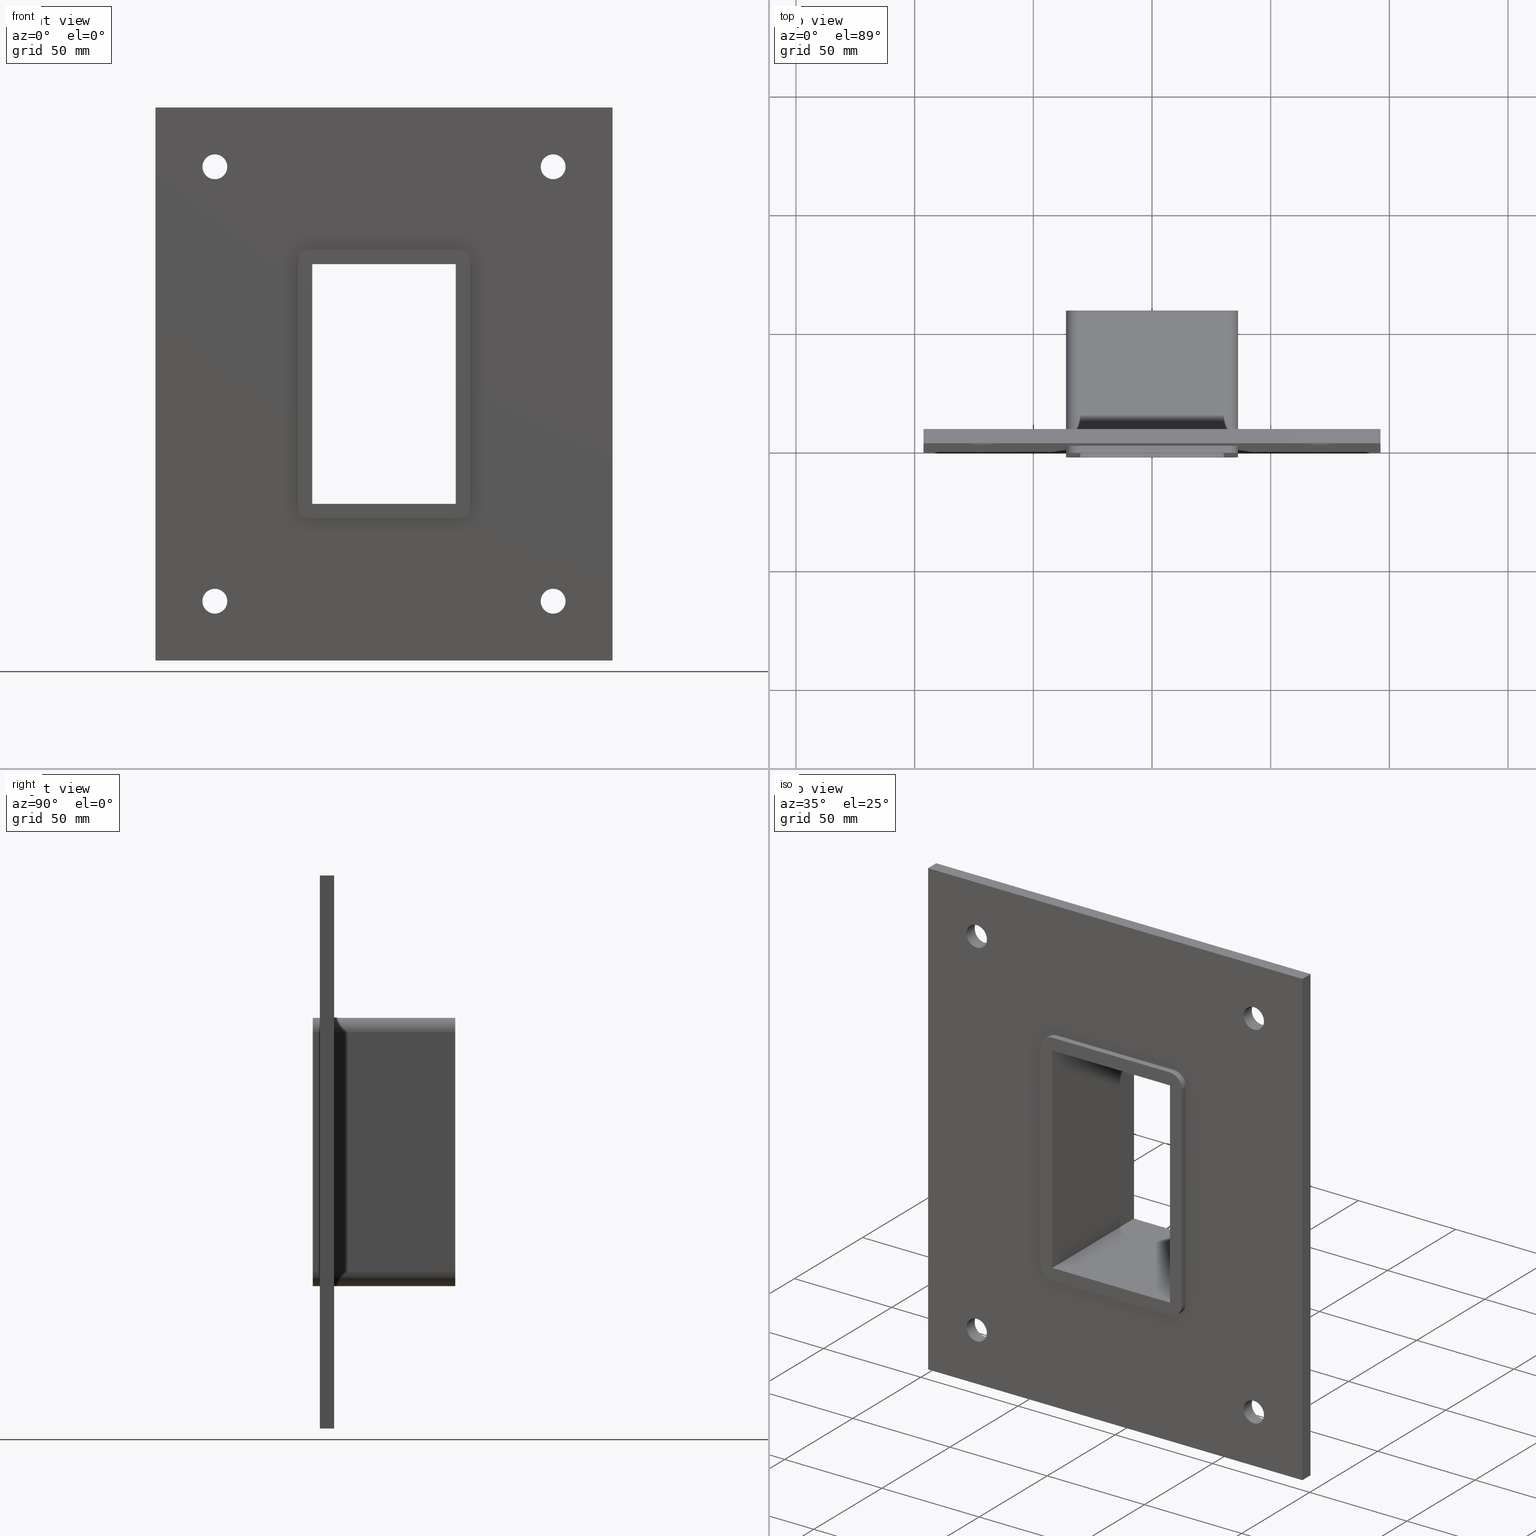
[diagram: canonical four-view strip — front | top / right | iso, engineering-drawing reading convention]
A machine part, canonical four-view strip (front | top / right | iso — engineering-drawing reading convention). The complete STEP part file that produces these views, byte-faithful:
ISO-10303-21;
HEADER;
/****************************************************************
 * Generated by software with PDElib inside                    *
 * PDElib Version v51a, created Wed 11/30/2011                  *
 * ITI Transcendata (http://www.transcendata.com/)              *
 ****************************************************************/
FILE_DESCRIPTION((''),'2;1');
FILE_NAME('L:\\roxtec-se\\Projects\\Ongoing_Projects\\12403 Transit Designer\\Product-data\\Product Data\\Reviwed & Approved\\Review\\GH\\STEP\\GH1X1.stp','2015-02-20T10:56:52',('se-emikul'),(''),'Autodesk Inventor 2013','Autodesk Inventor 2013','');
FILE_SCHEMA(('AUTOMOTIVE_DESIGN { 1 0 10303 214 1 1 1 1 }'));
ENDSEC;
DATA;
#5=APPLICATION_CONTEXT('automotive design');
#6=APPLICATION_PROTOCOL_DEFINITION('International Standard','automotive_design',2001,#5);
#7=PRODUCT_CONTEXT('',#5,'mechanical');
#8=PRODUCT('GH1X1','GH1X1',$,(#7));
#9=PRODUCT_RELATED_PRODUCT_CATEGORY('part',$,(#8));
#10=PRODUCT_DEFINITION_FORMATION('',$,#8);
#11=PRODUCT_DEFINITION_CONTEXT('part definition',#5,'design');
#12=PRODUCT_DEFINITION('',$,#10,#11);
#18=(NAMED_UNIT(*)PLANE_ANGLE_UNIT()SI_UNIT($,.RADIAN.));
#19=DIMENSIONAL_EXPONENTS(0.0,0.0,0.0,0.0,0.0,0.0,0.0);
#20=PLANE_ANGLE_MEASURE_WITH_UNIT(PLANE_ANGLE_MEASURE(0.0174532925),#18);
#24=(CONVERSION_BASED_UNIT('DEGREE',#20)NAMED_UNIT(#19)PLANE_ANGLE_UNIT());
#28=(NAMED_UNIT(*)SI_UNIT($,.STERADIAN.)SOLID_ANGLE_UNIT());
#32=(LENGTH_UNIT()NAMED_UNIT(*)SI_UNIT(.MILLI.,.METRE.));
#34=UNCERTAINTY_MEASURE_WITH_UNIT(LENGTH_MEASURE(0.01),#32,'DISTANCE_ACCURACY_VALUE','');
#36=(GEOMETRIC_REPRESENTATION_CONTEXT(3)GLOBAL_UNCERTAINTY_ASSIGNED_CONTEXT((#34))GLOBAL_UNIT_ASSIGNED_CONTEXT((#24,#28,#32))REPRESENTATION_CONTEXT('None','None'));
#37=AXIS2_PLACEMENT_3D('',#38,#39,#40);
#38=CARTESIAN_POINT('',(0.0,0.0,0.0));
#39=DIRECTION('',(0.0,0.0,1.0));
#40=DIRECTION('',(1.0,0.0,0.0));
#41=SHAPE_REPRESENTATION('',(#37),#36);
#42=PRODUCT_DEFINITION_SHAPE('','',#12);
#43=SHAPE_DEFINITION_REPRESENTATION(#42,#41);
#49=(NAMED_UNIT(*)PLANE_ANGLE_UNIT()SI_UNIT($,.RADIAN.));
#50=DIMENSIONAL_EXPONENTS(0.0,0.0,0.0,0.0,0.0,0.0,0.0);
#51=PLANE_ANGLE_MEASURE_WITH_UNIT(PLANE_ANGLE_MEASURE(0.0174532925),#49);
#55=(CONVERSION_BASED_UNIT('DEGREE',#51)NAMED_UNIT(#50)PLANE_ANGLE_UNIT());
#59=(NAMED_UNIT(*)SI_UNIT($,.STERADIAN.)SOLID_ANGLE_UNIT());
#63=(LENGTH_UNIT()NAMED_UNIT(*)SI_UNIT(.MILLI.,.METRE.));
#65=UNCERTAINTY_MEASURE_WITH_UNIT(LENGTH_MEASURE(0.000001),#63,'DISTANCE_ACCURACY_VALUE','');
#67=(GEOMETRIC_REPRESENTATION_CONTEXT(3)GLOBAL_UNCERTAINTY_ASSIGNED_CONTEXT((#65))GLOBAL_UNIT_ASSIGNED_CONTEXT((#55,#59,#63))REPRESENTATION_CONTEXT('','3D'));
#68=CARTESIAN_POINT('',(-71.250000000000128,308.13187112014236,-91.499999999999943));
#69=DIRECTION('',(0.0,-1.0,0.0));
#70=DIRECTION('',(1.0,0.0,0.0));
#71=AXIS2_PLACEMENT_3D('',#68,#69,#70);
#72=CYLINDRICAL_SURFACE('',#71,5.25);
#73=CARTESIAN_POINT('',(-76.500000000000128,6.000000000000014,-91.499999999999943));
#74=VERTEX_POINT('',#73);
#75=CARTESIAN_POINT('',(-71.250000000000128,6.000000000000014,-91.499999999999943));
#76=DIRECTION('',(0.0,-1.0,0.0));
#77=DIRECTION('',(1.0,0.0,0.0));
#78=AXIS2_PLACEMENT_3D('',#75,#76,#77);
#79=CIRCLE('',#78,5.25);
#80=EDGE_CURVE('',#74,#74,#79,.T.);
#81=ORIENTED_EDGE('',*,*,#80,.F.);
#82=EDGE_LOOP('',(#81));
#83=FACE_OUTER_BOUND('',#82,.T.);
#84=CARTESIAN_POINT('',(-66.000000000000114,0.0,-91.499999999999943));
#85=VERTEX_POINT('',#84);
#86=CARTESIAN_POINT('',(-71.250000000000128,0.0,-91.499999999999943));
#87=DIRECTION('',(0.0,1.0,0.0));
#88=DIRECTION('',(1.0,0.0,0.0));
#89=AXIS2_PLACEMENT_3D('',#86,#87,#88);
#90=CIRCLE('',#89,5.25);
#91=EDGE_CURVE('',#85,#85,#90,.T.);
#92=ORIENTED_EDGE('',*,*,#91,.F.);
#93=EDGE_LOOP('',(#92));
#94=FACE_BOUND('',#93,.T.);
#95=ADVANCED_FACE('',(#83,#94),#72,.F.);
#96=CARTESIAN_POINT('',(71.249999999999872,308.13187112014236,-91.5));
#97=DIRECTION('',(0.0,-1.0,0.0));
#98=DIRECTION('',(1.0,0.0,0.0));
#99=AXIS2_PLACEMENT_3D('',#96,#97,#98);
#100=CYLINDRICAL_SURFACE('',#99,5.25);
#101=CARTESIAN_POINT('',(65.999999999999872,6.000000000000014,-91.5));
#102=VERTEX_POINT('',#101);
#103=CARTESIAN_POINT('',(71.249999999999872,6.000000000000014,-91.5));
#104=DIRECTION('',(0.0,-1.0,0.0));
#105=DIRECTION('',(1.0,0.0,0.0));
#106=AXIS2_PLACEMENT_3D('',#103,#104,#105);
#107=CIRCLE('',#106,5.25);
#108=EDGE_CURVE('',#102,#102,#107,.T.);
#109=ORIENTED_EDGE('',*,*,#108,.F.);
#110=EDGE_LOOP('',(#109));
#111=FACE_OUTER_BOUND('',#110,.T.);
#112=CARTESIAN_POINT('',(76.499999999999886,0.0,-91.5));
#113=VERTEX_POINT('',#112);
#114=CARTESIAN_POINT('',(71.249999999999872,0.0,-91.5));
#115=DIRECTION('',(0.0,1.0,0.0));
#116=DIRECTION('',(1.0,0.0,0.0));
#117=AXIS2_PLACEMENT_3D('',#114,#115,#116);
#118=CIRCLE('',#117,5.25);
#119=EDGE_CURVE('',#113,#113,#118,.T.);
#120=ORIENTED_EDGE('',*,*,#119,.F.);
#121=EDGE_LOOP('',(#120));
#122=FACE_BOUND('',#121,.T.);
#123=ADVANCED_FACE('',(#111,#122),#100,.F.);
#124=CARTESIAN_POINT('',(-71.250000000000128,308.13187112014236,91.500000000000057));
#125=DIRECTION('',(0.0,-1.0,0.0));
#126=DIRECTION('',(1.0,0.0,0.0));
#127=AXIS2_PLACEMENT_3D('',#124,#125,#126);
#128=CYLINDRICAL_SURFACE('',#127,5.25);
#129=CARTESIAN_POINT('',(-76.500000000000128,6.000000000000014,91.500000000000057));
#130=VERTEX_POINT('',#129);
#131=CARTESIAN_POINT('',(-71.250000000000128,6.000000000000014,91.500000000000057));
#132=DIRECTION('',(0.0,-1.0,0.0));
#133=DIRECTION('',(1.0,0.0,0.0));
#134=AXIS2_PLACEMENT_3D('',#131,#132,#133);
#135=CIRCLE('',#134,5.25);
#136=EDGE_CURVE('',#130,#130,#135,.T.);
#137=ORIENTED_EDGE('',*,*,#136,.F.);
#138=EDGE_LOOP('',(#137));
#139=FACE_OUTER_BOUND('',#138,.T.);
#140=CARTESIAN_POINT('',(-66.000000000000114,0.0,91.500000000000057));
#141=VERTEX_POINT('',#140);
#142=CARTESIAN_POINT('',(-71.250000000000128,0.0,91.500000000000057));
#143=DIRECTION('',(0.0,1.0,0.0));
#144=DIRECTION('',(1.0,0.0,0.0));
#145=AXIS2_PLACEMENT_3D('',#142,#143,#144);
#146=CIRCLE('',#145,5.25);
#147=EDGE_CURVE('',#141,#141,#146,.T.);
#148=ORIENTED_EDGE('',*,*,#147,.F.);
#149=EDGE_LOOP('',(#148));
#150=FACE_BOUND('',#149,.T.);
#151=ADVANCED_FACE('',(#139,#150),#128,.F.);
#152=CARTESIAN_POINT('',(71.249999999999886,308.13187112014236,91.500000000000057));
#153=DIRECTION('',(0.0,-1.0,0.0));
#154=DIRECTION('',(1.0,0.0,0.0));
#155=AXIS2_PLACEMENT_3D('',#152,#153,#154);
#156=CYLINDRICAL_SURFACE('',#155,5.25);
#157=CARTESIAN_POINT('',(65.999999999999886,6.000000000000014,91.500000000000057));
#158=VERTEX_POINT('',#157);
#159=CARTESIAN_POINT('',(71.249999999999886,6.000000000000014,91.500000000000057));
#160=DIRECTION('',(0.0,-1.0,0.0));
#161=DIRECTION('',(1.0,0.0,0.0));
#162=AXIS2_PLACEMENT_3D('',#159,#160,#161);
#163=CIRCLE('',#162,5.25);
#164=EDGE_CURVE('',#158,#158,#163,.T.);
#165=ORIENTED_EDGE('',*,*,#164,.F.);
#166=EDGE_LOOP('',(#165));
#167=FACE_OUTER_BOUND('',#166,.T.);
#168=CARTESIAN_POINT('',(76.499999999999886,0.0,91.500000000000057));
#169=VERTEX_POINT('',#168);
#170=CARTESIAN_POINT('',(71.249999999999886,0.0,91.500000000000057));
#171=DIRECTION('',(0.0,1.0,0.0));
#172=DIRECTION('',(1.0,0.0,0.0));
#173=AXIS2_PLACEMENT_3D('',#170,#171,#172);
#174=CIRCLE('',#173,5.25);
#175=EDGE_CURVE('',#169,#169,#174,.T.);
#176=ORIENTED_EDGE('',*,*,#175,.F.);
#177=EDGE_LOOP('',(#176));
#178=FACE_BOUND('',#177,.T.);
#179=ADVANCED_FACE('',(#167,#178),#156,.F.);
#180=CARTESIAN_POINT('',(-1.502911E-014,6.000000000000001,0.0));
#181=DIRECTION('',(0.0,1.0,0.0));
#182=DIRECTION('',(0.0,0.0,1.0));
#183=AXIS2_PLACEMENT_3D('',#180,#181,#182);
#184=PLANE('',#183);
#185=CARTESIAN_POINT('',(-96.25,6.000000000000001,116.5));
#186=VERTEX_POINT('',#185);
#187=CARTESIAN_POINT('',(96.25,6.000000000000001,116.5));
#188=VERTEX_POINT('',#187);
#189=CARTESIAN_POINT('',(-96.25,6.000000000000001,116.5));
#190=DIRECTION('',(1.0,0.0,0.0));
#191=VECTOR('',#190,192.5);
#192=LINE('',#189,#191);
#193=EDGE_CURVE('',#186,#188,#192,.T.);
#194=ORIENTED_EDGE('',*,*,#193,.T.);
#195=CARTESIAN_POINT('',(96.25,6.000000000000001,-116.5));
#196=VERTEX_POINT('',#195);
#197=CARTESIAN_POINT('',(96.249999999999986,6.000000000000001,116.5));
#198=DIRECTION('',(0.0,0.0,-1.0));
#199=VECTOR('',#198,233.0);
#200=LINE('',#197,#199);
#201=EDGE_CURVE('',#188,#196,#200,.T.);
#202=ORIENTED_EDGE('',*,*,#201,.T.);
#203=CARTESIAN_POINT('',(-96.25,6.000000000000001,-116.5));
#204=VERTEX_POINT('',#203);
#205=CARTESIAN_POINT('',(96.249999999999986,6.000000000000001,-116.5));
#206=DIRECTION('',(-1.0,0.0,0.0));
#207=VECTOR('',#206,192.5);
#208=LINE('',#205,#207);
#209=EDGE_CURVE('',#196,#204,#208,.T.);
#210=ORIENTED_EDGE('',*,*,#209,.T.);
#211=CARTESIAN_POINT('',(-96.25,6.000000000000001,-116.5));
#212=DIRECTION('',(0.0,0.0,1.0));
#213=VECTOR('',#212,233.0);
#214=LINE('',#211,#213);
#215=EDGE_CURVE('',#204,#186,#214,.T.);
#216=ORIENTED_EDGE('',*,*,#215,.T.);
#217=EDGE_LOOP('',(#194,#202,#210,#216));
#218=FACE_OUTER_BOUND('',#217,.T.);
#219=ORIENTED_EDGE('',*,*,#80,.T.);
#220=EDGE_LOOP('',(#219));
#221=FACE_BOUND('',#220,.T.);
#222=ORIENTED_EDGE('',*,*,#108,.T.);
#223=EDGE_LOOP('',(#222));
#224=FACE_BOUND('',#223,.T.);
#225=ORIENTED_EDGE('',*,*,#136,.T.);
#226=EDGE_LOOP('',(#225));
#227=FACE_BOUND('',#226,.T.);
#228=ORIENTED_EDGE('',*,*,#164,.T.);
#229=EDGE_LOOP('',(#228));
#230=FACE_BOUND('',#229,.T.);
#231=CARTESIAN_POINT('',(-36.25,6.000000000000001,50.500000000000057));
#232=VERTEX_POINT('',#231);
#233=CARTESIAN_POINT('',(-30.250000000000004,6.000000000000001,56.500000000000057));
#234=VERTEX_POINT('',#233);
#235=CARTESIAN_POINT('',(-30.250000000000004,6.000000000000001,50.500000000000057));
#236=DIRECTION('',(0.0,1.0,0.0));
#237=DIRECTION('',(-0.707106781186547,0.0,0.707106781186547));
#238=AXIS2_PLACEMENT_3D('',#235,#236,#237);
#239=CIRCLE('',#238,6.0);
#240=EDGE_CURVE('',#232,#234,#239,.T.);
#241=ORIENTED_EDGE('',*,*,#240,.F.);
#242=CARTESIAN_POINT('',(-36.25,6.000000000000001,-50.500000000000057));
#243=VERTEX_POINT('',#242);
#244=CARTESIAN_POINT('',(-36.25,6.000000000000001,-50.500000000000057));
#245=DIRECTION('',(0.0,0.0,1.0));
#246=VECTOR('',#245,101.00000000000011);
#247=LINE('',#244,#246);
#248=EDGE_CURVE('',#243,#232,#247,.T.);
#249=ORIENTED_EDGE('',*,*,#248,.F.);
#250=CARTESIAN_POINT('',(-30.250000000000004,6.000000000000001,-56.500000000000057));
#251=VERTEX_POINT('',#250);
#252=CARTESIAN_POINT('',(-30.250000000000004,6.000000000000001,-50.500000000000057));
#253=DIRECTION('',(0.0,1.0,0.0));
#254=DIRECTION('',(-0.707106781186547,0.0,-0.707106781186547));
#255=AXIS2_PLACEMENT_3D('',#252,#253,#254);
#256=CIRCLE('',#255,6.0);
#257=EDGE_CURVE('',#251,#243,#256,.T.);
#258=ORIENTED_EDGE('',*,*,#257,.F.);
#259=CARTESIAN_POINT('',(30.250000000000004,6.000000000000001,-56.500000000000057));
#260=VERTEX_POINT('',#259);
#261=CARTESIAN_POINT('',(30.250000000000004,6.000000000000001,-56.500000000000057));
#262=DIRECTION('',(-1.0,0.0,0.0));
#263=VECTOR('',#262,60.5);
#264=LINE('',#261,#263);
#265=EDGE_CURVE('',#260,#251,#264,.T.);
#266=ORIENTED_EDGE('',*,*,#265,.F.);
#267=CARTESIAN_POINT('',(36.25,6.000000000000001,-50.500000000000057));
#268=VERTEX_POINT('',#267);
#269=CARTESIAN_POINT('',(30.250000000000004,6.000000000000001,-50.500000000000057));
#270=DIRECTION('',(0.0,1.0,0.0));
#271=DIRECTION('',(0.707106781186547,0.0,-0.707106781186547));
#272=AXIS2_PLACEMENT_3D('',#269,#270,#271);
#273=CIRCLE('',#272,6.0);
#274=EDGE_CURVE('',#268,#260,#273,.T.);
#275=ORIENTED_EDGE('',*,*,#274,.F.);
#276=CARTESIAN_POINT('',(36.25,6.000000000000001,50.500000000000057));
#277=VERTEX_POINT('',#276);
#278=CARTESIAN_POINT('',(36.25,6.000000000000001,50.500000000000057));
#279=DIRECTION('',(0.0,0.0,-1.0));
#280=VECTOR('',#279,101.00000000000011);
#281=LINE('',#278,#280);
#282=EDGE_CURVE('',#277,#268,#281,.T.);
#283=ORIENTED_EDGE('',*,*,#282,.F.);
#284=CARTESIAN_POINT('',(30.250000000000004,6.000000000000001,56.500000000000057));
#285=VERTEX_POINT('',#284);
#286=CARTESIAN_POINT('',(30.250000000000004,6.000000000000001,50.500000000000057));
#287=DIRECTION('',(0.0,1.0,0.0));
#288=DIRECTION('',(0.707106781186547,0.0,0.707106781186547));
#289=AXIS2_PLACEMENT_3D('',#286,#287,#288);
#290=CIRCLE('',#289,6.0);
#291=EDGE_CURVE('',#285,#277,#290,.T.);
#292=ORIENTED_EDGE('',*,*,#291,.F.);
#293=CARTESIAN_POINT('',(-30.250000000000004,6.000000000000001,56.500000000000057));
#294=DIRECTION('',(1.0,0.0,0.0));
#295=VECTOR('',#294,60.500000000000014);
#296=LINE('',#293,#295);
#297=EDGE_CURVE('',#234,#285,#296,.T.);
#298=ORIENTED_EDGE('',*,*,#297,.F.);
#299=EDGE_LOOP('',(#241,#249,#258,#266,#275,#283,#292,#298));
#300=FACE_BOUND('',#299,.T.);
#301=ADVANCED_FACE('',(#218,#221,#224,#227,#230,#300),#184,.T.);
#302=CARTESIAN_POINT('',(-1.502911E-014,0.0,0.0));
#303=DIRECTION('',(0.0,1.0,0.0));
#304=DIRECTION('',(0.0,0.0,1.0));
#305=AXIS2_PLACEMENT_3D('',#302,#303,#304);
#306=PLANE('',#305);
#307=CARTESIAN_POINT('',(-96.25,0.0,116.5));
#308=VERTEX_POINT('',#307);
#309=CARTESIAN_POINT('',(96.249999999999986,0.0,116.5));
#310=VERTEX_POINT('',#309);
#311=CARTESIAN_POINT('',(-96.25,0.0,116.5));
#312=DIRECTION('',(1.0,0.0,0.0));
#313=VECTOR('',#312,192.5);
#314=LINE('',#311,#313);
#315=EDGE_CURVE('',#308,#310,#314,.T.);
#316=ORIENTED_EDGE('',*,*,#315,.F.);
#317=CARTESIAN_POINT('',(-96.25,0.0,-116.5));
#318=VERTEX_POINT('',#317);
#319=CARTESIAN_POINT('',(-96.25,0.0,-116.5));
#320=DIRECTION('',(0.0,0.0,1.0));
#321=VECTOR('',#320,233.0);
#322=LINE('',#319,#321);
#323=EDGE_CURVE('',#318,#308,#322,.T.);
#324=ORIENTED_EDGE('',*,*,#323,.F.);
#325=CARTESIAN_POINT('',(96.249999999999986,0.0,-116.5));
#326=VERTEX_POINT('',#325);
#327=CARTESIAN_POINT('',(96.249999999999986,0.0,-116.5));
#328=DIRECTION('',(-1.0,0.0,0.0));
#329=VECTOR('',#328,192.5);
#330=LINE('',#327,#329);
#331=EDGE_CURVE('',#326,#318,#330,.T.);
#332=ORIENTED_EDGE('',*,*,#331,.F.);
#333=CARTESIAN_POINT('',(96.249999999999986,0.0,116.5));
#334=DIRECTION('',(0.0,0.0,-1.0));
#335=VECTOR('',#334,233.0);
#336=LINE('',#333,#335);
#337=EDGE_CURVE('',#310,#326,#336,.T.);
#338=ORIENTED_EDGE('',*,*,#337,.F.);
#339=EDGE_LOOP('',(#316,#324,#332,#338));
#340=FACE_OUTER_BOUND('',#339,.T.);
#341=ORIENTED_EDGE('',*,*,#91,.T.);
#342=EDGE_LOOP('',(#341));
#343=FACE_BOUND('',#342,.T.);
#344=ORIENTED_EDGE('',*,*,#119,.T.);
#345=EDGE_LOOP('',(#344));
#346=FACE_BOUND('',#345,.T.);
#347=ORIENTED_EDGE('',*,*,#147,.T.);
#348=EDGE_LOOP('',(#347));
#349=FACE_BOUND('',#348,.T.);
#350=ORIENTED_EDGE('',*,*,#175,.T.);
#351=EDGE_LOOP('',(#350));
#352=FACE_BOUND('',#351,.T.);
#353=CARTESIAN_POINT('',(-30.250000000000004,0.0,56.500000000000057));
#354=VERTEX_POINT('',#353);
#355=CARTESIAN_POINT('',(-36.25,0.0,50.500000000000057));
#356=VERTEX_POINT('',#355);
#357=CARTESIAN_POINT('',(-30.250000000000004,0.0,50.500000000000057));
#358=DIRECTION('',(0.0,-1.0,0.0));
#359=DIRECTION('',(-0.707106781186547,0.0,0.707106781186547));
#360=AXIS2_PLACEMENT_3D('',#357,#358,#359);
#361=CIRCLE('',#360,6.0);
#362=EDGE_CURVE('',#354,#356,#361,.T.);
#363=ORIENTED_EDGE('',*,*,#362,.F.);
#364=CARTESIAN_POINT('',(30.250000000000004,0.0,56.500000000000057));
#365=VERTEX_POINT('',#364);
#366=CARTESIAN_POINT('',(30.250000000000007,0.0,56.500000000000057));
#367=DIRECTION('',(-1.0,0.0,0.0));
#368=VECTOR('',#367,60.500000000000014);
#369=LINE('',#366,#368);
#370=EDGE_CURVE('',#365,#354,#369,.T.);
#371=ORIENTED_EDGE('',*,*,#370,.F.);
#372=CARTESIAN_POINT('',(36.25,0.0,50.500000000000057));
#373=VERTEX_POINT('',#372);
#374=CARTESIAN_POINT('',(30.250000000000004,0.0,50.500000000000057));
#375=DIRECTION('',(0.0,-1.0,0.0));
#376=DIRECTION('',(0.707106781186547,0.0,0.707106781186547));
#377=AXIS2_PLACEMENT_3D('',#374,#375,#376);
#378=CIRCLE('',#377,6.0);
#379=EDGE_CURVE('',#373,#365,#378,.T.);
#380=ORIENTED_EDGE('',*,*,#379,.F.);
#381=CARTESIAN_POINT('',(36.25,0.0,-50.500000000000057));
#382=VERTEX_POINT('',#381);
#383=CARTESIAN_POINT('',(36.25,0.0,-50.500000000000057));
#384=DIRECTION('',(0.0,0.0,1.0));
#385=VECTOR('',#384,101.00000000000011);
#386=LINE('',#383,#385);
#387=EDGE_CURVE('',#382,#373,#386,.T.);
#388=ORIENTED_EDGE('',*,*,#387,.F.);
#389=CARTESIAN_POINT('',(30.250000000000004,0.0,-56.500000000000057));
#390=VERTEX_POINT('',#389);
#391=CARTESIAN_POINT('',(30.250000000000004,0.0,-50.500000000000057));
#392=DIRECTION('',(0.0,-1.0,0.0));
#393=DIRECTION('',(0.707106781186547,0.0,-0.707106781186547));
#394=AXIS2_PLACEMENT_3D('',#391,#392,#393);
#395=CIRCLE('',#394,6.0);
#396=EDGE_CURVE('',#390,#382,#395,.T.);
#397=ORIENTED_EDGE('',*,*,#396,.F.);
#398=CARTESIAN_POINT('',(-30.250000000000004,0.0,-56.500000000000057));
#399=VERTEX_POINT('',#398);
#400=CARTESIAN_POINT('',(-30.25,0.0,-56.500000000000057));
#401=DIRECTION('',(1.0,0.0,0.0));
#402=VECTOR('',#401,60.5);
#403=LINE('',#400,#402);
#404=EDGE_CURVE('',#399,#390,#403,.T.);
#405=ORIENTED_EDGE('',*,*,#404,.F.);
#406=CARTESIAN_POINT('',(-36.25,0.0,-50.500000000000057));
#407=VERTEX_POINT('',#406);
#408=CARTESIAN_POINT('',(-30.250000000000004,0.0,-50.500000000000057));
#409=DIRECTION('',(0.0,-1.0,0.0));
#410=DIRECTION('',(-0.707106781186547,0.0,-0.707106781186547));
#411=AXIS2_PLACEMENT_3D('',#408,#409,#410);
#412=CIRCLE('',#411,6.0);
#413=EDGE_CURVE('',#407,#399,#412,.T.);
#414=ORIENTED_EDGE('',*,*,#413,.F.);
#415=CARTESIAN_POINT('',(-36.25,0.0,50.500000000000057));
#416=DIRECTION('',(0.0,0.0,-1.0));
#417=VECTOR('',#416,101.00000000000011);
#418=LINE('',#415,#417);
#419=EDGE_CURVE('',#356,#407,#418,.T.);
#420=ORIENTED_EDGE('',*,*,#419,.F.);
#421=EDGE_LOOP('',(#363,#371,#380,#388,#397,#405,#414,#420));
#422=FACE_BOUND('',#421,.T.);
#423=ADVANCED_FACE('',(#340,#343,#346,#349,#352,#422),#306,.F.);
#424=CARTESIAN_POINT('',(-96.25,0.0,-116.5));
#425=DIRECTION('',(-1.0,0.0,0.0));
#426=DIRECTION('',(0.0,0.0,1.0));
#427=AXIS2_PLACEMENT_3D('',#424,#425,#426);
#428=PLANE('',#427);
#429=ORIENTED_EDGE('',*,*,#323,.T.);
#430=CARTESIAN_POINT('',(-96.25,0.0,116.5));
#431=DIRECTION('',(0.0,1.0,0.0));
#432=VECTOR('',#431,6.000000000000001);
#433=LINE('',#430,#432);
#434=EDGE_CURVE('',#308,#186,#433,.T.);
#435=ORIENTED_EDGE('',*,*,#434,.T.);
#436=ORIENTED_EDGE('',*,*,#215,.F.);
#437=CARTESIAN_POINT('',(-96.25,0.0,-116.5));
#438=DIRECTION('',(0.0,1.0,0.0));
#439=VECTOR('',#438,6.000000000000001);
#440=LINE('',#437,#439);
#441=EDGE_CURVE('',#318,#204,#440,.T.);
#442=ORIENTED_EDGE('',*,*,#441,.F.);
#443=EDGE_LOOP('',(#429,#435,#436,#442));
#444=FACE_OUTER_BOUND('',#443,.T.);
#445=ADVANCED_FACE('',(#444),#428,.T.);
#446=CARTESIAN_POINT('',(96.249999999999986,0.0,-116.5));
#447=DIRECTION('',(0.0,0.0,-1.0));
#448=DIRECTION('',(-1.0,0.0,0.0));
#449=AXIS2_PLACEMENT_3D('',#446,#447,#448);
#450=PLANE('',#449);
#451=ORIENTED_EDGE('',*,*,#331,.T.);
#452=ORIENTED_EDGE('',*,*,#441,.T.);
#453=ORIENTED_EDGE('',*,*,#209,.F.);
#454=CARTESIAN_POINT('',(96.249999999999986,0.0,-116.5));
#455=DIRECTION('',(0.0,1.0,0.0));
#456=VECTOR('',#455,6.000000000000001);
#457=LINE('',#454,#456);
#458=EDGE_CURVE('',#326,#196,#457,.T.);
#459=ORIENTED_EDGE('',*,*,#458,.F.);
#460=EDGE_LOOP('',(#451,#452,#453,#459));
#461=FACE_OUTER_BOUND('',#460,.T.);
#462=ADVANCED_FACE('',(#461),#450,.T.);
#463=CARTESIAN_POINT('',(96.249999999999986,0.0,116.5));
#464=DIRECTION('',(1.0,0.0,0.0));
#465=DIRECTION('',(0.0,0.0,-1.0));
#466=AXIS2_PLACEMENT_3D('',#463,#464,#465);
#467=PLANE('',#466);
#468=ORIENTED_EDGE('',*,*,#337,.T.);
#469=ORIENTED_EDGE('',*,*,#458,.T.);
#470=ORIENTED_EDGE('',*,*,#201,.F.);
#471=CARTESIAN_POINT('',(96.249999999999986,0.0,116.5));
#472=DIRECTION('',(0.0,1.0,0.0));
#473=VECTOR('',#472,6.000000000000001);
#474=LINE('',#471,#473);
#475=EDGE_CURVE('',#310,#188,#474,.T.);
#476=ORIENTED_EDGE('',*,*,#475,.F.);
#477=EDGE_LOOP('',(#468,#469,#470,#476));
#478=FACE_OUTER_BOUND('',#477,.T.);
#479=ADVANCED_FACE('',(#478),#467,.T.);
#480=CARTESIAN_POINT('',(-96.25,0.0,116.5));
#481=DIRECTION('',(0.0,0.0,1.0));
#482=DIRECTION('',(1.0,0.0,0.0));
#483=AXIS2_PLACEMENT_3D('',#480,#481,#482);
#484=PLANE('',#483);
#485=ORIENTED_EDGE('',*,*,#315,.T.);
#486=ORIENTED_EDGE('',*,*,#475,.T.);
#487=ORIENTED_EDGE('',*,*,#193,.F.);
#488=ORIENTED_EDGE('',*,*,#434,.F.);
#489=EDGE_LOOP('',(#485,#486,#487,#488));
#490=FACE_OUTER_BOUND('',#489,.T.);
#491=ADVANCED_FACE('',(#490),#484,.T.);
#492=CARTESIAN_POINT('',(-30.249999999999986,0.0,-50.500000000000043));
#493=DIRECTION('',(-1.0,0.0,0.0));
#494=DIRECTION('',(0.0,0.0,1.0));
#495=AXIS2_PLACEMENT_3D('',#492,#493,#494);
#496=PLANE('',#495);
#497=CARTESIAN_POINT('',(-30.249999999999986,-3.0,-50.500000000000043));
#498=VERTEX_POINT('',#497);
#499=CARTESIAN_POINT('',(-30.249999999999986,57.0,-50.500000000000043));
#500=VERTEX_POINT('',#499);
#501=CARTESIAN_POINT('',(-30.249999999999986,-3.0,-50.500000000000043));
#502=DIRECTION('',(0.0,1.0,0.0));
#503=VECTOR('',#502,60.0);
#504=LINE('',#501,#503);
#505=EDGE_CURVE('',#498,#500,#504,.T.);
#506=ORIENTED_EDGE('',*,*,#505,.T.);
#507=CARTESIAN_POINT('',(-30.249999999999986,57.0,50.500000000000007));
#508=VERTEX_POINT('',#507);
#509=CARTESIAN_POINT('',(-30.249999999999986,57.0,50.500000000000007));
#510=DIRECTION('',(0.0,0.0,-1.0));
#511=VECTOR('',#510,101.00000000000006);
#512=LINE('',#509,#511);
#513=EDGE_CURVE('',#508,#500,#512,.T.);
#514=ORIENTED_EDGE('',*,*,#513,.F.);
#515=CARTESIAN_POINT('',(-30.249999999999986,-3.0,50.500000000000007));
#516=VERTEX_POINT('',#515);
#517=CARTESIAN_POINT('',(-30.249999999999986,-3.0,50.500000000000007));
#518=DIRECTION('',(0.0,1.0,0.0));
#519=VECTOR('',#518,60.0);
#520=LINE('',#517,#519);
#521=EDGE_CURVE('',#516,#508,#520,.T.);
#522=ORIENTED_EDGE('',*,*,#521,.F.);
#523=CARTESIAN_POINT('',(-30.249999999999986,-3.0,-50.500000000000043));
#524=DIRECTION('',(0.0,0.0,1.0));
#525=VECTOR('',#524,101.00000000000006);
#526=LINE('',#523,#525);
#527=EDGE_CURVE('',#498,#516,#526,.T.);
#528=ORIENTED_EDGE('',*,*,#527,.F.);
#529=EDGE_LOOP('',(#506,#514,#522,#528));
#530=FACE_OUTER_BOUND('',#529,.T.);
#531=ADVANCED_FACE('',(#530),#496,.F.);
#532=CARTESIAN_POINT('',(30.250000000000004,0.0,-50.500000000000057));
#533=DIRECTION('',(0.0,1.0,0.0));
#534=DIRECTION('',(0.707106781186547,0.0,-0.707106781186547));
#535=AXIS2_PLACEMENT_3D('',#532,#533,#534);
#536=CYLINDRICAL_SURFACE('',#535,6.000000000000001);
#537=ORIENTED_EDGE('',*,*,#396,.T.);
#538=CARTESIAN_POINT('',(36.25,-3.0,-50.500000000000057));
#539=VERTEX_POINT('',#538);
#540=CARTESIAN_POINT('',(36.25,0.0,-50.500000000000057));
#541=DIRECTION('',(0.0,-1.0,0.0));
#542=VECTOR('',#541,3.0);
#543=LINE('',#540,#542);
#544=EDGE_CURVE('',#382,#539,#543,.T.);
#545=ORIENTED_EDGE('',*,*,#544,.T.);
#546=CARTESIAN_POINT('',(30.250000000000004,-3.0,-56.500000000000057));
#547=VERTEX_POINT('',#546);
#548=CARTESIAN_POINT('',(30.250000000000004,-3.0,-50.500000000000057));
#549=DIRECTION('',(0.0,1.0,0.0));
#550=DIRECTION('',(0.707106781186547,0.0,-0.707106781186547));
#551=AXIS2_PLACEMENT_3D('',#548,#549,#550);
#552=CIRCLE('',#551,6.0);
#553=EDGE_CURVE('',#539,#547,#552,.T.);
#554=ORIENTED_EDGE('',*,*,#553,.T.);
#555=CARTESIAN_POINT('',(30.250000000000004,-3.0,-56.500000000000057));
#556=DIRECTION('',(0.0,1.0,0.0));
#557=VECTOR('',#556,3.0);
#558=LINE('',#555,#557);
#559=EDGE_CURVE('',#547,#390,#558,.T.);
#560=ORIENTED_EDGE('',*,*,#559,.T.);
#561=EDGE_LOOP('',(#537,#545,#554,#560));
#562=FACE_OUTER_BOUND('',#561,.T.);
#563=ADVANCED_FACE('',(#562),#536,.T.);
#564=CARTESIAN_POINT('',(30.250000000000004,0.0,-50.500000000000057));
#565=DIRECTION('',(0.0,1.0,0.0));
#566=DIRECTION('',(0.707106781186547,0.0,-0.707106781186547));
#567=AXIS2_PLACEMENT_3D('',#564,#565,#566);
#568=CYLINDRICAL_SURFACE('',#567,6.000000000000001);
#569=ORIENTED_EDGE('',*,*,#274,.T.);
#570=CARTESIAN_POINT('',(30.250000000000004,57.0,-56.500000000000057));
#571=VERTEX_POINT('',#570);
#572=CARTESIAN_POINT('',(30.250000000000004,6.000000000000001,-56.500000000000057));
#573=DIRECTION('',(0.0,1.0,0.0));
#574=VECTOR('',#573,51.0);
#575=LINE('',#572,#574);
#576=EDGE_CURVE('',#260,#571,#575,.T.);
#577=ORIENTED_EDGE('',*,*,#576,.T.);
#578=CARTESIAN_POINT('',(36.25,57.0,-50.500000000000057));
#579=VERTEX_POINT('',#578);
#580=CARTESIAN_POINT('',(30.250000000000004,57.0,-50.500000000000057));
#581=DIRECTION('',(0.0,-1.0,0.0));
#582=DIRECTION('',(0.707106781186547,0.0,-0.707106781186547));
#583=AXIS2_PLACEMENT_3D('',#580,#581,#582);
#584=CIRCLE('',#583,6.0);
#585=EDGE_CURVE('',#571,#579,#584,.T.);
#586=ORIENTED_EDGE('',*,*,#585,.T.);
#587=CARTESIAN_POINT('',(36.25,57.0,-50.500000000000057));
#588=DIRECTION('',(0.0,-1.0,0.0));
#589=VECTOR('',#588,51.0);
#590=LINE('',#587,#589);
#591=EDGE_CURVE('',#579,#268,#590,.T.);
#592=ORIENTED_EDGE('',*,*,#591,.T.);
#593=EDGE_LOOP('',(#569,#577,#586,#592));
#594=FACE_OUTER_BOUND('',#593,.T.);
#595=ADVANCED_FACE('',(#594),#568,.T.);
#596=CARTESIAN_POINT('',(36.25,0.0,-56.500000000000057));
#597=DIRECTION('',(0.0,0.0,-1.0));
#598=DIRECTION('',(-1.0,0.0,0.0));
#599=AXIS2_PLACEMENT_3D('',#596,#597,#598);
#600=PLANE('',#599);
#601=ORIENTED_EDGE('',*,*,#404,.T.);
#602=ORIENTED_EDGE('',*,*,#559,.F.);
#603=CARTESIAN_POINT('',(-30.250000000000004,-3.0,-56.500000000000057));
#604=VERTEX_POINT('',#603);
#605=CARTESIAN_POINT('',(-30.25,-3.0,-56.500000000000057));
#606=DIRECTION('',(1.0,0.0,0.0));
#607=VECTOR('',#606,60.5);
#608=LINE('',#605,#607);
#609=EDGE_CURVE('',#604,#547,#608,.T.);
#610=ORIENTED_EDGE('',*,*,#609,.F.);
#611=CARTESIAN_POINT('',(-30.250000000000004,0.0,-56.500000000000057));
#612=DIRECTION('',(0.0,-1.0,0.0));
#613=VECTOR('',#612,3.0);
#614=LINE('',#611,#613);
#615=EDGE_CURVE('',#399,#604,#614,.T.);
#616=ORIENTED_EDGE('',*,*,#615,.F.);
#617=EDGE_LOOP('',(#601,#602,#610,#616));
#618=FACE_OUTER_BOUND('',#617,.T.);
#619=ADVANCED_FACE('',(#618),#600,.T.);
#620=CARTESIAN_POINT('',(36.25,0.0,-56.500000000000057));
#621=DIRECTION('',(0.0,0.0,-1.0));
#622=DIRECTION('',(-1.0,0.0,0.0));
#623=AXIS2_PLACEMENT_3D('',#620,#621,#622);
#624=PLANE('',#623);
#625=ORIENTED_EDGE('',*,*,#265,.T.);
#626=CARTESIAN_POINT('',(-30.250000000000004,57.0,-56.500000000000057));
#627=VERTEX_POINT('',#626);
#628=CARTESIAN_POINT('',(-30.250000000000004,57.0,-56.500000000000057));
#629=DIRECTION('',(0.0,-1.0,0.0));
#630=VECTOR('',#629,51.0);
#631=LINE('',#628,#630);
#632=EDGE_CURVE('',#627,#251,#631,.T.);
#633=ORIENTED_EDGE('',*,*,#632,.F.);
#634=CARTESIAN_POINT('',(30.250000000000004,57.0,-56.500000000000057));
#635=DIRECTION('',(-1.0,0.0,0.0));
#636=VECTOR('',#635,60.5);
#637=LINE('',#634,#636);
#638=EDGE_CURVE('',#571,#627,#637,.T.);
#639=ORIENTED_EDGE('',*,*,#638,.F.);
#640=ORIENTED_EDGE('',*,*,#576,.F.);
#641=EDGE_LOOP('',(#625,#633,#639,#640));
#642=FACE_OUTER_BOUND('',#641,.T.);
#643=ADVANCED_FACE('',(#642),#624,.T.);
#644=CARTESIAN_POINT('',(36.25,0.0,56.500000000000021));
#645=DIRECTION('',(1.0,0.0,0.0));
#646=DIRECTION('',(0.0,0.0,-1.0));
#647=AXIS2_PLACEMENT_3D('',#644,#645,#646);
#648=PLANE('',#647);
#649=ORIENTED_EDGE('',*,*,#387,.T.);
#650=CARTESIAN_POINT('',(36.25,-3.0,50.500000000000057));
#651=VERTEX_POINT('',#650);
#652=CARTESIAN_POINT('',(36.25,-3.0,50.500000000000057));
#653=DIRECTION('',(0.0,1.0,0.0));
#654=VECTOR('',#653,3.0);
#655=LINE('',#652,#654);
#656=EDGE_CURVE('',#651,#373,#655,.T.);
#657=ORIENTED_EDGE('',*,*,#656,.F.);
#658=CARTESIAN_POINT('',(36.25,-3.0,-50.500000000000057));
#659=DIRECTION('',(0.0,0.0,1.0));
#660=VECTOR('',#659,101.00000000000011);
#661=LINE('',#658,#660);
#662=EDGE_CURVE('',#539,#651,#661,.T.);
#663=ORIENTED_EDGE('',*,*,#662,.F.);
#664=ORIENTED_EDGE('',*,*,#544,.F.);
#665=EDGE_LOOP('',(#649,#657,#663,#664));
#666=FACE_OUTER_BOUND('',#665,.T.);
#667=ADVANCED_FACE('',(#666),#648,.T.);
#668=CARTESIAN_POINT('',(-30.250000000000004,0.0,-50.500000000000057));
#669=DIRECTION('',(0.0,1.0,0.0));
#670=DIRECTION('',(-0.707106781186547,0.0,-0.707106781186547));
#671=AXIS2_PLACEMENT_3D('',#668,#669,#670);
#672=CYLINDRICAL_SURFACE('',#671,6.000000000000001);
#673=ORIENTED_EDGE('',*,*,#413,.T.);
#674=ORIENTED_EDGE('',*,*,#615,.T.);
#675=CARTESIAN_POINT('',(-36.25,-3.0,-50.500000000000057));
#676=VERTEX_POINT('',#675);
#677=CARTESIAN_POINT('',(-30.250000000000004,-3.0,-50.500000000000057));
#678=DIRECTION('',(0.0,1.0,0.0));
#679=DIRECTION('',(-0.707106781186547,0.0,-0.707106781186547));
#680=AXIS2_PLACEMENT_3D('',#677,#678,#679);
#681=CIRCLE('',#680,6.0);
#682=EDGE_CURVE('',#604,#676,#681,.T.);
#683=ORIENTED_EDGE('',*,*,#682,.T.);
#684=CARTESIAN_POINT('',(-36.25,-3.0,-50.500000000000057));
#685=DIRECTION('',(0.0,1.0,0.0));
#686=VECTOR('',#685,3.0);
#687=LINE('',#684,#686);
#688=EDGE_CURVE('',#676,#407,#687,.T.);
#689=ORIENTED_EDGE('',*,*,#688,.T.);
#690=EDGE_LOOP('',(#673,#674,#683,#689));
#691=FACE_OUTER_BOUND('',#690,.T.);
#692=ADVANCED_FACE('',(#691),#672,.T.);
#693=CARTESIAN_POINT('',(-30.250000000000004,0.0,-50.500000000000057));
#694=DIRECTION('',(0.0,1.0,0.0));
#695=DIRECTION('',(-0.707106781186547,0.0,-0.707106781186547));
#696=AXIS2_PLACEMENT_3D('',#693,#694,#695);
#697=CYLINDRICAL_SURFACE('',#696,6.000000000000001);
#698=ORIENTED_EDGE('',*,*,#257,.T.);
#699=CARTESIAN_POINT('',(-36.25,57.0,-50.500000000000057));
#700=VERTEX_POINT('',#699);
#701=CARTESIAN_POINT('',(-36.25,6.000000000000001,-50.500000000000057));
#702=DIRECTION('',(0.0,1.0,0.0));
#703=VECTOR('',#702,51.0);
#704=LINE('',#701,#703);
#705=EDGE_CURVE('',#243,#700,#704,.T.);
#706=ORIENTED_EDGE('',*,*,#705,.T.);
#707=CARTESIAN_POINT('',(-30.250000000000004,57.0,-50.500000000000057));
#708=DIRECTION('',(0.0,-1.0,0.0));
#709=DIRECTION('',(-0.707106781186547,0.0,-0.707106781186547));
#710=AXIS2_PLACEMENT_3D('',#707,#708,#709);
#711=CIRCLE('',#710,6.0);
#712=EDGE_CURVE('',#700,#627,#711,.T.);
#713=ORIENTED_EDGE('',*,*,#712,.T.);
#714=ORIENTED_EDGE('',*,*,#632,.T.);
#715=EDGE_LOOP('',(#698,#706,#713,#714));
#716=FACE_OUTER_BOUND('',#715,.T.);
#717=ADVANCED_FACE('',(#716),#697,.T.);
#718=CARTESIAN_POINT('',(30.250000000000004,0.0,50.500000000000057));
#719=DIRECTION('',(0.0,-1.0,0.0));
#720=DIRECTION('',(0.707106781186547,0.0,0.707106781186547));
#721=AXIS2_PLACEMENT_3D('',#718,#719,#720);
#722=CYLINDRICAL_SURFACE('',#721,6.000000000000001);
#723=ORIENTED_EDGE('',*,*,#379,.T.);
#724=CARTESIAN_POINT('',(30.250000000000004,-3.0,56.500000000000057));
#725=VERTEX_POINT('',#724);
#726=CARTESIAN_POINT('',(30.250000000000004,0.0,56.500000000000057));
#727=DIRECTION('',(0.0,-1.0,0.0));
#728=VECTOR('',#727,3.0);
#729=LINE('',#726,#728);
#730=EDGE_CURVE('',#365,#725,#729,.T.);
#731=ORIENTED_EDGE('',*,*,#730,.T.);
#732=CARTESIAN_POINT('',(30.250000000000004,-3.0,50.500000000000057));
#733=DIRECTION('',(0.0,1.0,0.0));
#734=DIRECTION('',(0.707106781186547,0.0,0.707106781186547));
#735=AXIS2_PLACEMENT_3D('',#732,#733,#734);
#736=CIRCLE('',#735,6.0);
#737=EDGE_CURVE('',#725,#651,#736,.T.);
#738=ORIENTED_EDGE('',*,*,#737,.T.);
#739=ORIENTED_EDGE('',*,*,#656,.T.);
#740=EDGE_LOOP('',(#723,#731,#738,#739));
#741=FACE_OUTER_BOUND('',#740,.T.);
#742=ADVANCED_FACE('',(#741),#722,.T.);
#743=CARTESIAN_POINT('',(-36.25,0.0,-56.500000000000021));
#744=DIRECTION('',(-1.0,0.0,0.0));
#745=DIRECTION('',(0.0,0.0,1.0));
#746=AXIS2_PLACEMENT_3D('',#743,#744,#745);
#747=PLANE('',#746);
#748=ORIENTED_EDGE('',*,*,#419,.T.);
#749=ORIENTED_EDGE('',*,*,#688,.F.);
#750=CARTESIAN_POINT('',(-36.25,-3.0,50.500000000000057));
#751=VERTEX_POINT('',#750);
#752=CARTESIAN_POINT('',(-36.25,-3.0,50.500000000000057));
#753=DIRECTION('',(0.0,0.0,-1.0));
#754=VECTOR('',#753,101.00000000000011);
#755=LINE('',#752,#754);
#756=EDGE_CURVE('',#751,#676,#755,.T.);
#757=ORIENTED_EDGE('',*,*,#756,.F.);
#758=CARTESIAN_POINT('',(-36.25,0.0,50.500000000000057));
#759=DIRECTION('',(0.0,-1.0,0.0));
#760=VECTOR('',#759,3.0);
#761=LINE('',#758,#760);
#762=EDGE_CURVE('',#356,#751,#761,.T.);
#763=ORIENTED_EDGE('',*,*,#762,.F.);
#764=EDGE_LOOP('',(#748,#749,#757,#763));
#765=FACE_OUTER_BOUND('',#764,.T.);
#766=ADVANCED_FACE('',(#765),#747,.T.);
#767=CARTESIAN_POINT('',(-36.25,0.0,-56.500000000000021));
#768=DIRECTION('',(-1.0,0.0,0.0));
#769=DIRECTION('',(0.0,0.0,1.0));
#770=AXIS2_PLACEMENT_3D('',#767,#768,#769);
#771=PLANE('',#770);
#772=ORIENTED_EDGE('',*,*,#248,.T.);
#773=CARTESIAN_POINT('',(-36.25,57.0,50.500000000000057));
#774=VERTEX_POINT('',#773);
#775=CARTESIAN_POINT('',(-36.25,57.0,50.500000000000057));
#776=DIRECTION('',(0.0,-1.0,0.0));
#777=VECTOR('',#776,51.0);
#778=LINE('',#775,#777);
#779=EDGE_CURVE('',#774,#232,#778,.T.);
#780=ORIENTED_EDGE('',*,*,#779,.F.);
#781=CARTESIAN_POINT('',(-36.25,57.0,-50.500000000000057));
#782=DIRECTION('',(0.0,0.0,1.0));
#783=VECTOR('',#782,101.00000000000011);
#784=LINE('',#781,#783);
#785=EDGE_CURVE('',#700,#774,#784,.T.);
#786=ORIENTED_EDGE('',*,*,#785,.F.);
#787=ORIENTED_EDGE('',*,*,#705,.F.);
#788=EDGE_LOOP('',(#772,#780,#786,#787));
#789=FACE_OUTER_BOUND('',#788,.T.);
#790=ADVANCED_FACE('',(#789),#771,.T.);
#791=CARTESIAN_POINT('',(-36.25,0.0,56.500000000000057));
#792=DIRECTION('',(0.0,0.0,1.0));
#793=DIRECTION('',(1.0,0.0,0.0));
#794=AXIS2_PLACEMENT_3D('',#791,#792,#793);
#795=PLANE('',#794);
#796=ORIENTED_EDGE('',*,*,#370,.T.);
#797=CARTESIAN_POINT('',(-30.250000000000004,-3.0,56.500000000000057));
#798=VERTEX_POINT('',#797);
#799=CARTESIAN_POINT('',(-30.250000000000004,-3.0,56.500000000000057));
#800=DIRECTION('',(0.0,1.0,0.0));
#801=VECTOR('',#800,3.0);
#802=LINE('',#799,#801);
#803=EDGE_CURVE('',#798,#354,#802,.T.);
#804=ORIENTED_EDGE('',*,*,#803,.F.);
#805=CARTESIAN_POINT('',(30.25,-3.0,56.500000000000057));
#806=DIRECTION('',(-1.0,0.0,0.0));
#807=VECTOR('',#806,60.5);
#808=LINE('',#805,#807);
#809=EDGE_CURVE('',#725,#798,#808,.T.);
#810=ORIENTED_EDGE('',*,*,#809,.F.);
#811=ORIENTED_EDGE('',*,*,#730,.F.);
#812=EDGE_LOOP('',(#796,#804,#810,#811));
#813=FACE_OUTER_BOUND('',#812,.T.);
#814=ADVANCED_FACE('',(#813),#795,.T.);
#815=CARTESIAN_POINT('',(-30.250000000000004,0.0,50.500000000000057));
#816=DIRECTION('',(0.0,1.0,0.0));
#817=DIRECTION('',(-0.707106781186547,0.0,0.707106781186547));
#818=AXIS2_PLACEMENT_3D('',#815,#816,#817);
#819=CYLINDRICAL_SURFACE('',#818,6.000000000000001);
#820=ORIENTED_EDGE('',*,*,#362,.T.);
#821=ORIENTED_EDGE('',*,*,#762,.T.);
#822=CARTESIAN_POINT('',(-30.250000000000004,-3.0,50.500000000000057));
#823=DIRECTION('',(0.0,1.0,0.0));
#824=DIRECTION('',(-0.707106781186547,0.0,0.707106781186547));
#825=AXIS2_PLACEMENT_3D('',#822,#823,#824);
#826=CIRCLE('',#825,6.0);
#827=EDGE_CURVE('',#751,#798,#826,.T.);
#828=ORIENTED_EDGE('',*,*,#827,.T.);
#829=ORIENTED_EDGE('',*,*,#803,.T.);
#830=EDGE_LOOP('',(#820,#821,#828,#829));
#831=FACE_OUTER_BOUND('',#830,.T.);
#832=ADVANCED_FACE('',(#831),#819,.T.);
#833=CARTESIAN_POINT('',(0.0,-3.0,0.0));
#834=DIRECTION('',(0.0,1.0,0.0));
#835=DIRECTION('',(0.0,0.0,1.0));
#836=AXIS2_PLACEMENT_3D('',#833,#834,#835);
#837=PLANE('',#836);
#838=ORIENTED_EDGE('',*,*,#682,.F.);
#839=ORIENTED_EDGE('',*,*,#609,.T.);
#840=ORIENTED_EDGE('',*,*,#553,.F.);
#841=ORIENTED_EDGE('',*,*,#662,.T.);
#842=ORIENTED_EDGE('',*,*,#737,.F.);
#843=ORIENTED_EDGE('',*,*,#809,.T.);
#844=ORIENTED_EDGE('',*,*,#827,.F.);
#845=ORIENTED_EDGE('',*,*,#756,.T.);
#846=EDGE_LOOP('',(#838,#839,#840,#841,#842,#843,#844,#845));
#847=FACE_OUTER_BOUND('',#846,.T.);
#848=CARTESIAN_POINT('',(30.249999999999986,-3.0,50.500000000000007));
#849=VERTEX_POINT('',#848);
#850=CARTESIAN_POINT('',(30.249999999999986,-3.0,-50.500000000000043));
#851=VERTEX_POINT('',#850);
#852=CARTESIAN_POINT('',(30.249999999999986,-3.0,50.500000000000007));
#853=DIRECTION('',(0.0,0.0,-1.0));
#854=VECTOR('',#853,101.00000000000006);
#855=LINE('',#852,#854);
#856=EDGE_CURVE('',#849,#851,#855,.T.);
#857=ORIENTED_EDGE('',*,*,#856,.T.);
#858=CARTESIAN_POINT('',(30.249999999999986,-3.0,-50.500000000000043));
#859=DIRECTION('',(-1.0,0.0,0.0));
#860=VECTOR('',#859,60.499999999999972);
#861=LINE('',#858,#860);
#862=EDGE_CURVE('',#851,#498,#861,.T.);
#863=ORIENTED_EDGE('',*,*,#862,.T.);
#864=ORIENTED_EDGE('',*,*,#527,.T.);
#865=CARTESIAN_POINT('',(-30.249999999999986,-3.0,50.499999999999972));
#866=DIRECTION('',(1.0,0.0,0.0));
#867=VECTOR('',#866,60.499999999999972);
#868=LINE('',#865,#867);
#869=EDGE_CURVE('',#516,#849,#868,.T.);
#870=ORIENTED_EDGE('',*,*,#869,.T.);
#871=EDGE_LOOP('',(#857,#863,#864,#870));
#872=FACE_BOUND('',#871,.T.);
#873=ADVANCED_FACE('',(#847,#872),#837,.F.);
#874=CARTESIAN_POINT('',(-30.250000000000004,0.0,50.500000000000057));
#875=DIRECTION('',(0.0,1.0,0.0));
#876=DIRECTION('',(-0.707106781186547,0.0,0.707106781186547));
#877=AXIS2_PLACEMENT_3D('',#874,#875,#876);
#878=CYLINDRICAL_SURFACE('',#877,6.000000000000001);
#879=ORIENTED_EDGE('',*,*,#240,.T.);
#880=CARTESIAN_POINT('',(-30.250000000000004,57.0,56.500000000000057));
#881=VERTEX_POINT('',#880);
#882=CARTESIAN_POINT('',(-30.250000000000004,6.000000000000001,56.500000000000057));
#883=DIRECTION('',(0.0,1.0,0.0));
#884=VECTOR('',#883,51.0);
#885=LINE('',#882,#884);
#886=EDGE_CURVE('',#234,#881,#885,.T.);
#887=ORIENTED_EDGE('',*,*,#886,.T.);
#888=CARTESIAN_POINT('',(-30.250000000000004,57.0,50.500000000000057));
#889=DIRECTION('',(0.0,-1.0,0.0));
#890=DIRECTION('',(-0.707106781186547,0.0,0.707106781186547));
#891=AXIS2_PLACEMENT_3D('',#888,#889,#890);
#892=CIRCLE('',#891,6.0);
#893=EDGE_CURVE('',#881,#774,#892,.T.);
#894=ORIENTED_EDGE('',*,*,#893,.T.);
#895=ORIENTED_EDGE('',*,*,#779,.T.);
#896=EDGE_LOOP('',(#879,#887,#894,#895));
#897=FACE_OUTER_BOUND('',#896,.T.);
#898=ADVANCED_FACE('',(#897),#878,.T.);
#899=CARTESIAN_POINT('',(-36.25,0.0,56.500000000000057));
#900=DIRECTION('',(0.0,0.0,1.0));
#901=DIRECTION('',(1.0,0.0,0.0));
#902=AXIS2_PLACEMENT_3D('',#899,#900,#901);
#903=PLANE('',#902);
#904=ORIENTED_EDGE('',*,*,#297,.T.);
#905=CARTESIAN_POINT('',(30.250000000000004,57.0,56.500000000000057));
#906=VERTEX_POINT('',#905);
#907=CARTESIAN_POINT('',(30.250000000000004,57.0,56.500000000000057));
#908=DIRECTION('',(0.0,-1.0,0.0));
#909=VECTOR('',#908,51.0);
#910=LINE('',#907,#909);
#911=EDGE_CURVE('',#906,#285,#910,.T.);
#912=ORIENTED_EDGE('',*,*,#911,.F.);
#913=CARTESIAN_POINT('',(-30.250000000000004,57.0,56.500000000000057));
#914=DIRECTION('',(1.0,0.0,0.0));
#915=VECTOR('',#914,60.5);
#916=LINE('',#913,#915);
#917=EDGE_CURVE('',#881,#906,#916,.T.);
#918=ORIENTED_EDGE('',*,*,#917,.F.);
#919=ORIENTED_EDGE('',*,*,#886,.F.);
#920=EDGE_LOOP('',(#904,#912,#918,#919));
#921=FACE_OUTER_BOUND('',#920,.T.);
#922=ADVANCED_FACE('',(#921),#903,.T.);
#923=CARTESIAN_POINT('',(30.250000000000004,0.0,50.500000000000057));
#924=DIRECTION('',(0.0,-1.0,0.0));
#925=DIRECTION('',(0.707106781186547,0.0,0.707106781186547));
#926=AXIS2_PLACEMENT_3D('',#923,#924,#925);
#927=CYLINDRICAL_SURFACE('',#926,6.000000000000001);
#928=ORIENTED_EDGE('',*,*,#291,.T.);
#929=CARTESIAN_POINT('',(36.25,57.0,50.500000000000057));
#930=VERTEX_POINT('',#929);
#931=CARTESIAN_POINT('',(36.25,6.000000000000001,50.500000000000057));
#932=DIRECTION('',(0.0,1.0,0.0));
#933=VECTOR('',#932,51.0);
#934=LINE('',#931,#933);
#935=EDGE_CURVE('',#277,#930,#934,.T.);
#936=ORIENTED_EDGE('',*,*,#935,.T.);
#937=CARTESIAN_POINT('',(30.250000000000004,57.0,50.500000000000057));
#938=DIRECTION('',(0.0,-1.0,0.0));
#939=DIRECTION('',(0.707106781186547,0.0,0.707106781186547));
#940=AXIS2_PLACEMENT_3D('',#937,#938,#939);
#941=CIRCLE('',#940,6.0);
#942=EDGE_CURVE('',#930,#906,#941,.T.);
#943=ORIENTED_EDGE('',*,*,#942,.T.);
#944=ORIENTED_EDGE('',*,*,#911,.T.);
#945=EDGE_LOOP('',(#928,#936,#943,#944));
#946=FACE_OUTER_BOUND('',#945,.T.);
#947=ADVANCED_FACE('',(#946),#927,.T.);
#948=CARTESIAN_POINT('',(36.25,0.0,56.500000000000021));
#949=DIRECTION('',(1.0,0.0,0.0));
#950=DIRECTION('',(0.0,0.0,-1.0));
#951=AXIS2_PLACEMENT_3D('',#948,#949,#950);
#952=PLANE('',#951);
#953=ORIENTED_EDGE('',*,*,#282,.T.);
#954=ORIENTED_EDGE('',*,*,#591,.F.);
#955=CARTESIAN_POINT('',(36.25,57.0,50.500000000000057));
#956=DIRECTION('',(0.0,0.0,-1.0));
#957=VECTOR('',#956,101.00000000000011);
#958=LINE('',#955,#957);
#959=EDGE_CURVE('',#930,#579,#958,.T.);
#960=ORIENTED_EDGE('',*,*,#959,.F.);
#961=ORIENTED_EDGE('',*,*,#935,.F.);
#962=EDGE_LOOP('',(#953,#954,#960,#961));
#963=FACE_OUTER_BOUND('',#962,.T.);
#964=ADVANCED_FACE('',(#963),#952,.T.);
#965=CARTESIAN_POINT('',(30.249999999999986,0.0,50.499999999999972));
#966=DIRECTION('',(1.0,0.0,0.0));
#967=DIRECTION('',(0.0,0.0,-1.0));
#968=AXIS2_PLACEMENT_3D('',#965,#966,#967);
#969=PLANE('',#968);
#970=CARTESIAN_POINT('',(30.249999999999986,57.0,-50.500000000000043));
#971=VERTEX_POINT('',#970);
#972=CARTESIAN_POINT('',(30.249999999999986,56.999999999999993,-50.500000000000043));
#973=DIRECTION('',(0.0,-1.0,0.0));
#974=VECTOR('',#973,59.999999999999993);
#975=LINE('',#972,#974);
#976=EDGE_CURVE('',#971,#851,#975,.T.);
#977=ORIENTED_EDGE('',*,*,#976,.T.);
#978=ORIENTED_EDGE('',*,*,#856,.F.);
#979=CARTESIAN_POINT('',(30.249999999999986,57.0,50.500000000000007));
#980=VERTEX_POINT('',#979);
#981=CARTESIAN_POINT('',(30.249999999999986,-3.0,50.500000000000007));
#982=DIRECTION('',(0.0,1.0,0.0));
#983=VECTOR('',#982,60.0);
#984=LINE('',#981,#983);
#985=EDGE_CURVE('',#849,#980,#984,.T.);
#986=ORIENTED_EDGE('',*,*,#985,.T.);
#987=CARTESIAN_POINT('',(30.249999999999986,57.0,-50.500000000000043));
#988=DIRECTION('',(0.0,0.0,1.0));
#989=VECTOR('',#988,101.00000000000006);
#990=LINE('',#987,#989);
#991=EDGE_CURVE('',#971,#980,#990,.T.);
#992=ORIENTED_EDGE('',*,*,#991,.F.);
#993=EDGE_LOOP('',(#977,#978,#986,#992));
#994=FACE_OUTER_BOUND('',#993,.T.);
#995=ADVANCED_FACE('',(#994),#969,.F.);
#996=CARTESIAN_POINT('',(-30.249999999999986,0.0,50.499999999999972));
#997=DIRECTION('',(0.0,0.0,1.0));
#998=DIRECTION('',(1.0,0.0,0.0));
#999=AXIS2_PLACEMENT_3D('',#996,#997,#998);
#1000=PLANE('',#999);
#1001=ORIENTED_EDGE('',*,*,#521,.T.);
#1002=CARTESIAN_POINT('',(30.249999999999986,57.0,50.499999999999972));
#1003=DIRECTION('',(-1.0,0.0,0.0));
#1004=VECTOR('',#1003,60.499999999999972);
#1005=LINE('',#1002,#1004);
#1006=EDGE_CURVE('',#980,#508,#1005,.T.);
#1007=ORIENTED_EDGE('',*,*,#1006,.F.);
#1008=ORIENTED_EDGE('',*,*,#985,.F.);
#1009=ORIENTED_EDGE('',*,*,#869,.F.);
#1010=EDGE_LOOP('',(#1001,#1007,#1008,#1009));
#1011=FACE_OUTER_BOUND('',#1010,.T.);
#1012=ADVANCED_FACE('',(#1011),#1000,.F.);
#1013=CARTESIAN_POINT('',(30.249999999999986,0.0,-50.500000000000043));
#1014=DIRECTION('',(0.0,0.0,-1.0));
#1015=DIRECTION('',(-1.0,0.0,0.0));
#1016=AXIS2_PLACEMENT_3D('',#1013,#1014,#1015);
#1017=PLANE('',#1016);
#1018=ORIENTED_EDGE('',*,*,#505,.F.);
#1019=ORIENTED_EDGE('',*,*,#862,.F.);
#1020=ORIENTED_EDGE('',*,*,#976,.F.);
#1021=CARTESIAN_POINT('',(-30.249999999999986,57.0,-50.500000000000043));
#1022=DIRECTION('',(1.0,0.0,0.0));
#1023=VECTOR('',#1022,60.499999999999972);
#1024=LINE('',#1021,#1023);
#1025=EDGE_CURVE('',#500,#971,#1024,.T.);
#1026=ORIENTED_EDGE('',*,*,#1025,.F.);
#1027=EDGE_LOOP('',(#1018,#1019,#1020,#1026));
#1028=FACE_OUTER_BOUND('',#1027,.T.);
#1029=ADVANCED_FACE('',(#1028),#1017,.F.);
#1030=CARTESIAN_POINT('',(0.0,57.0,0.0));
#1031=DIRECTION('',(0.0,1.0,0.0));
#1032=DIRECTION('',(0.0,0.0,1.0));
#1033=AXIS2_PLACEMENT_3D('',#1030,#1031,#1032);
#1034=PLANE('',#1033);
#1035=ORIENTED_EDGE('',*,*,#712,.F.);
#1036=ORIENTED_EDGE('',*,*,#785,.T.);
#1037=ORIENTED_EDGE('',*,*,#893,.F.);
#1038=ORIENTED_EDGE('',*,*,#917,.T.);
#1039=ORIENTED_EDGE('',*,*,#942,.F.);
#1040=ORIENTED_EDGE('',*,*,#959,.T.);
#1041=ORIENTED_EDGE('',*,*,#585,.F.);
#1042=ORIENTED_EDGE('',*,*,#638,.T.);
#1043=EDGE_LOOP('',(#1035,#1036,#1037,#1038,#1039,#1040,#1041,#1042));
#1044=FACE_OUTER_BOUND('',#1043,.T.);
#1045=ORIENTED_EDGE('',*,*,#991,.T.);
#1046=ORIENTED_EDGE('',*,*,#1006,.T.);
#1047=ORIENTED_EDGE('',*,*,#513,.T.);
#1048=ORIENTED_EDGE('',*,*,#1025,.T.);
#1049=EDGE_LOOP('',(#1045,#1046,#1047,#1048));
#1050=FACE_BOUND('',#1049,.T.);
#1051=ADVANCED_FACE('',(#1044,#1050),#1034,.T.);
#1052=CLOSED_SHELL('',(#95,#123,#151,#179,#301,#423,#445,#462,#479,#491,#531,#563,#595,#619,#643,#667,#692,#717,#742,#766,#790,#814,#832,#873,#898,#922,#947,#964,#995,#1012,#1029,#1051));
#1053=MANIFOLD_SOLID_BREP('GHBG_Base',#1052);
#1054=COLOUR_RGB('Silicon Nitride - Polished',0.800000011920929,0.796078443527222,0.701960802078247);
#1055=FILL_AREA_STYLE_COLOUR('Silicon Nitride - Polished',#1054);
#1056=FILL_AREA_STYLE('Silicon Nitride - Polished',(#1055));
#1057=SURFACE_STYLE_FILL_AREA(#1056);
#1058=SURFACE_SIDE_STYLE('Silicon Nitride - Polished',(#1057));
#1059=SURFACE_STYLE_USAGE(.BOTH.,#1058);
#1060=PRESENTATION_STYLE_ASSIGNMENT((#1059));
#1061=STYLED_ITEM('',(#1060),#1053);
#1062=MECHANICAL_DESIGN_GEOMETRIC_PRESENTATION_REPRESENTATION('',(#1061),#36);
#1063=ADVANCED_BREP_SHAPE_REPRESENTATION('ABSR',(#1053),#36);
#1064=SHAPE_REPRESENTATION_RELATIONSHIP('SRR','None',#1063,#41);
ENDSEC;
END-ISO-10303-21;
